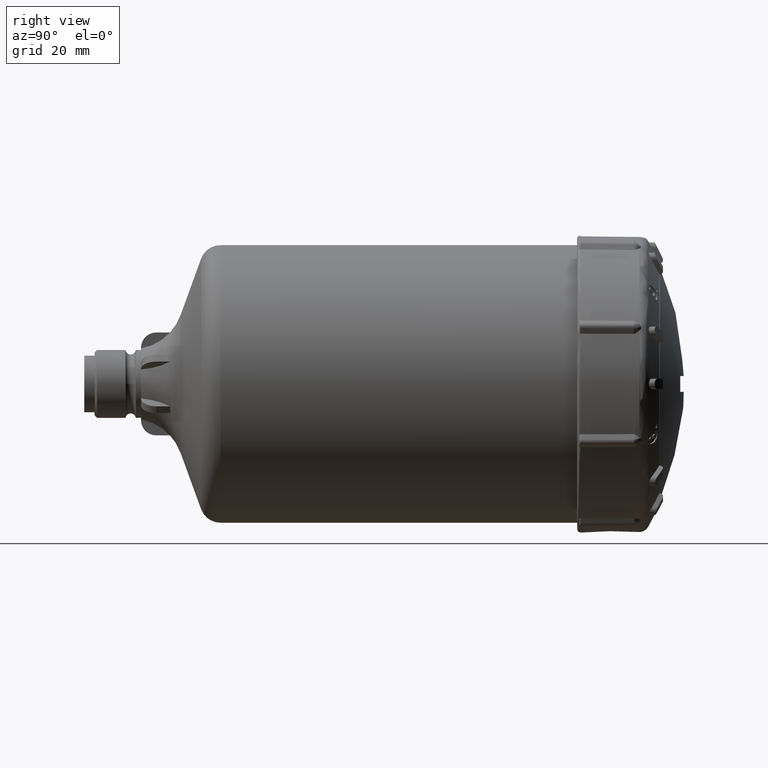
[diagram: clean part render]
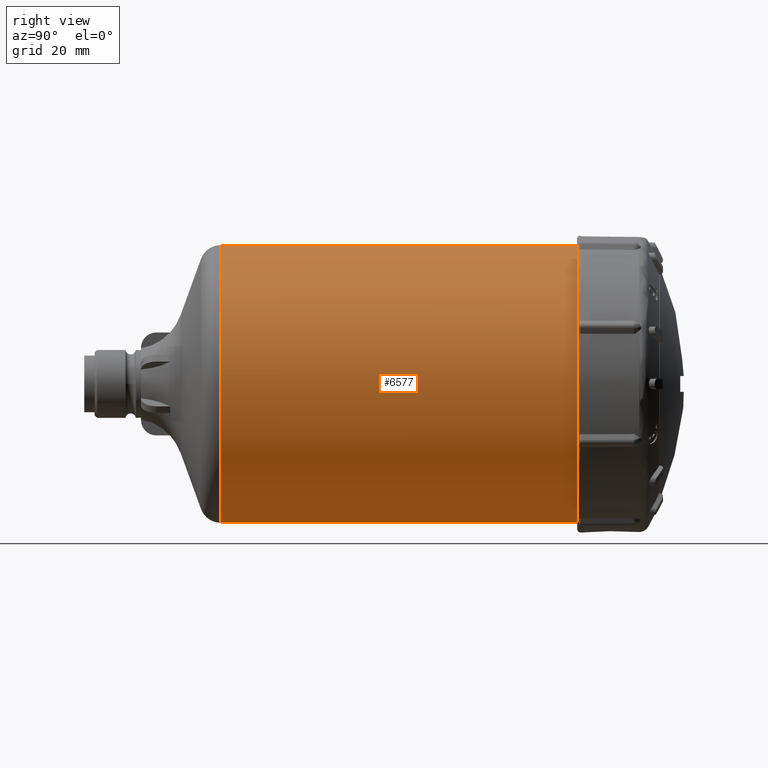
[diagram: same view with one face highlighted and labeled with its STEP entity id]
A machine part, right view. The second image highlights one B-rep face of the part: STEP entity #6577.
In plain terms, the highlighted cylindrical surface (bore or boss wall) has radius 26.95 mm, axis along (-0, 1, 0).
Its self-contained STEP definition (entity closure, byte-faithful):
#497=LINE('',#14178,#801);
#801=VECTOR('',#8801,26.9500000000001);
#1458=CYLINDRICAL_SURFACE('',#7231,26.9500000000001);
#1809=FACE_OUTER_BOUND('',#2192,.T.);
#2192=EDGE_LOOP('',(#6009,#6010,#6011,#6012,#6013,#6014));
#2306=CIRCLE('',#6771,26.9500000000001);
#2576=CIRCLE('',#7227,26.9500000000001);
#2577=CIRCLE('',#7228,26.9500000000001);
#2578=CIRCLE('',#7229,26.9500000000001);
#2749=VERTEX_POINT('',#10079);
#3196=VERTEX_POINT('',#14170);
#3197=VERTEX_POINT('',#14171);
#3198=VERTEX_POINT('',#14173);
#3465=EDGE_CURVE('',#2749,#2749,#2306,.T.);
#4138=EDGE_CURVE('',#3196,#3197,#2576,.T.);
#4139=EDGE_CURVE('',#3198,#3196,#2577,.T.);
#4140=EDGE_CURVE('',#3197,#3198,#2578,.T.);
#4142=EDGE_CURVE('',#2749,#3198,#497,.T.);
#6009=ORIENTED_EDGE('',*,*,#3465,.T.);
#6010=ORIENTED_EDGE('',*,*,#4142,.T.);
#6011=ORIENTED_EDGE('',*,*,#4139,.T.);
#6012=ORIENTED_EDGE('',*,*,#4138,.T.);
#6013=ORIENTED_EDGE('',*,*,#4140,.T.);
#6014=ORIENTED_EDGE('',*,*,#4142,.F.);
#6577=ADVANCED_FACE('',(#1809),#1458,.T.);
#6771=AXIS2_PLACEMENT_3D('',#10080,#7664,#7665);
#7227=AXIS2_PLACEMENT_3D('',#14172,#8791,#8792);
#7228=AXIS2_PLACEMENT_3D('',#14174,#8793,#8794);
#7229=AXIS2_PLACEMENT_3D('',#14175,#8795,#8796);
#7231=AXIS2_PLACEMENT_3D('',#14177,#8799,#8800);
#7664=DIRECTION('center_axis',(0.,-1.,0.));
#7665=DIRECTION('ref_axis',(1.63311561366286E-33,6.40309176315754E-32,-1.));
#8791=DIRECTION('center_axis',(-3.67702306362359E-17,1.,2.31725584917124E-17));
#8792=DIRECTION('ref_axis',(1.63311561366286E-33,6.40309176315755E-32,-1.));
#8793=DIRECTION('center_axis',(-3.67702306362359E-17,1.,2.31725584917124E-17));
#8794=DIRECTION('ref_axis',(1.63311561366286E-33,6.40309176315755E-32,-1.));
#8795=DIRECTION('center_axis',(-3.67702306362359E-17,1.,2.31725584917124E-17));
#8796=DIRECTION('ref_axis',(1.63311561366286E-33,6.40309176315755E-32,-1.));
#8799=DIRECTION('center_axis',(-3.67702306362359E-17,1.,2.31725584917124E-17));
#8800=DIRECTION('ref_axis',(1.63311561366286E-33,6.40309176315754E-32,-1.));
#8801=DIRECTION('',(3.67702306362359E-17,-1.,-2.31725584917124E-17));
#10079=CARTESIAN_POINT('',(-3.28944693729669E-15,-0.29850741253262,26.9500000000001));
#10080=CARTESIAN_POINT('Origin',(1.09761864054399E-17,-0.29850741253262,
-3.02367301246455E-16));
#14170=CARTESIAN_POINT('',(2.55785101914415E-15,-69.5630942446001,-26.9500000000001));
#14171=CARTESIAN_POINT('',(-26.9500000000001,-69.5630942446001,1.39301813268529E-15));
#14172=CARTESIAN_POINT('Origin',(2.55785101914415E-15,-69.5630942446001,
-1.90740499101683E-15));
#14173=CARTESIAN_POINT('',(5.85827414284628E-15,-69.5630942446001,26.9500000000001));
#14174=CARTESIAN_POINT('Origin',(2.55785101914415E-15,-69.5630942446001,
-1.90740499101683E-15));
#14175=CARTESIAN_POINT('Origin',(2.55785101914415E-15,-69.5630942446001,
-1.90740499101683E-15));
#14177=CARTESIAN_POINT('Origin',(1.04451528926607E-15,-28.4065471223,-9.53702495508415E-16));
#14178=CARTESIAN_POINT('',(4.34493841296819E-15,-28.4065471223,26.9500000000001));